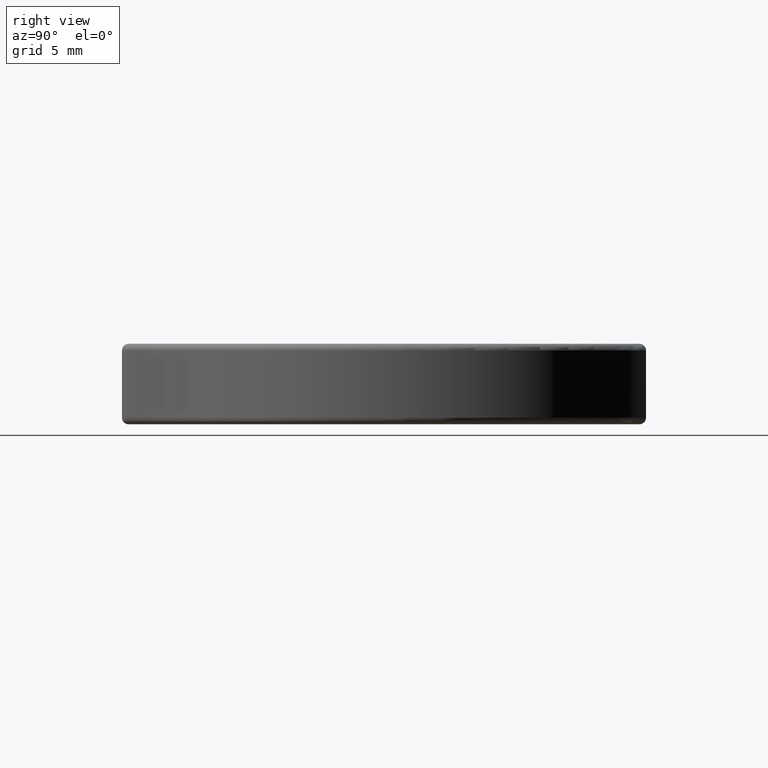
[diagram: clean part render]
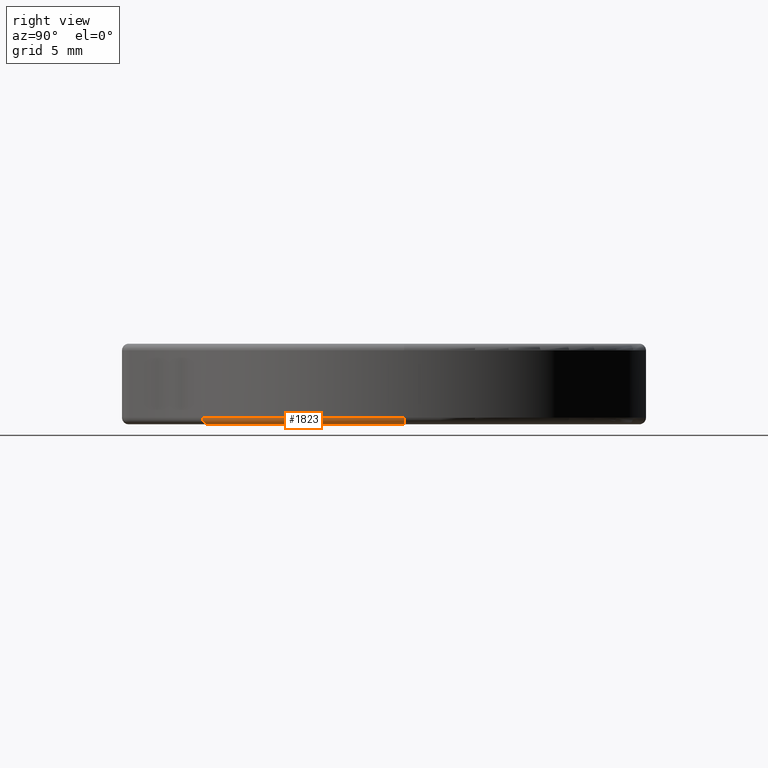
[diagram: same view with one face highlighted and labeled with its STEP entity id]
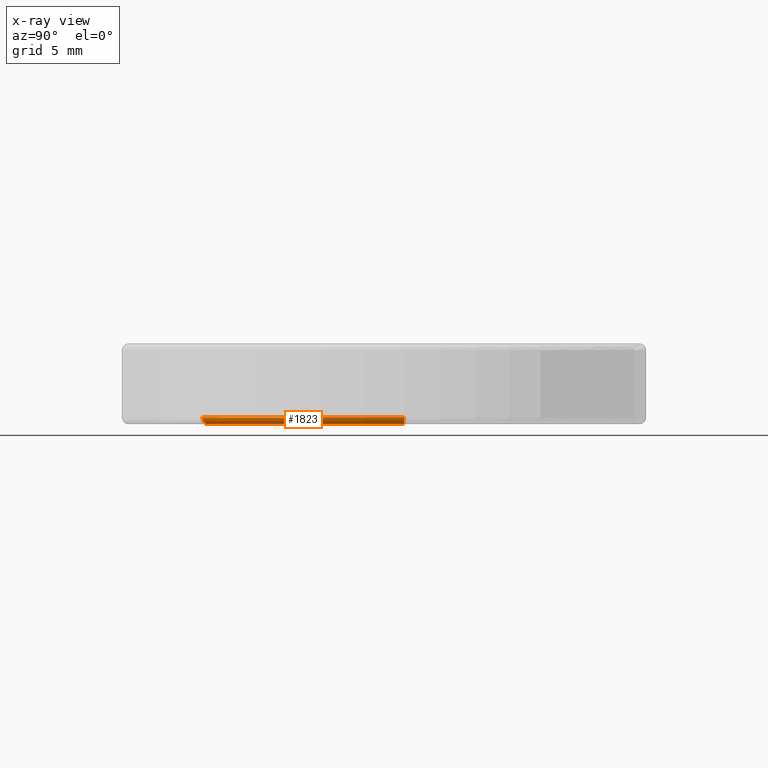
[diagram: x-ray of the same camera — body ghosted, the highlighted face saturated]
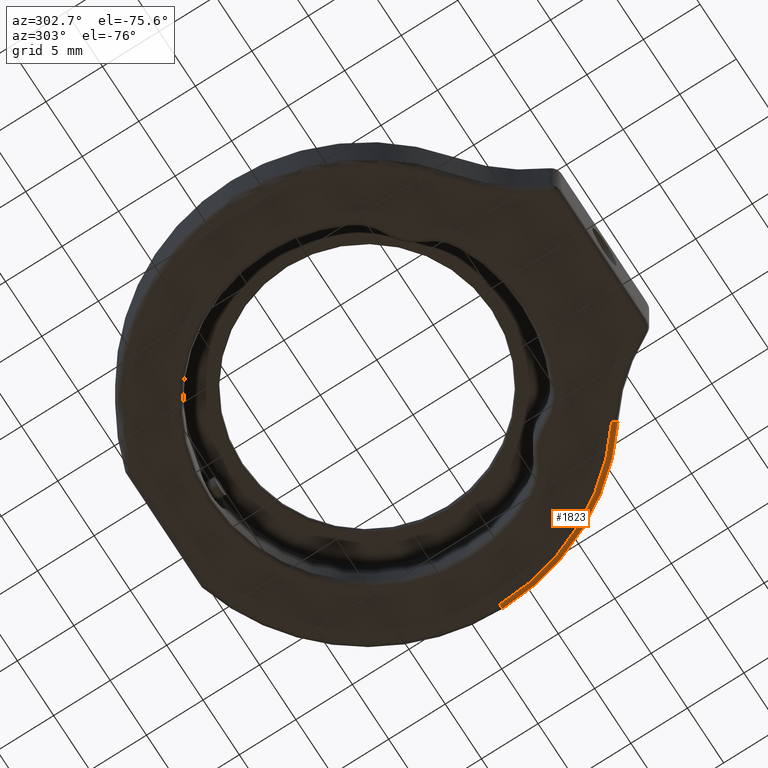
[diagram: same view with one face highlighted and labeled with its STEP entity id]
A machine part, right view. The second image highlights one B-rep face of the part: STEP entity #1823.
The next image is the same camera in x-ray: the body ghosted, the highlighted face saturated — about 0% of this face is hidden behind the body in this view.
A second angle (auxiliary view) of the same face is appended — the face is thin or edge-on in the first view.
In plain terms, the highlighted toroidal blend (fillet) surface has major radius 18.25 mm and minor (blend) radius 0.5 mm.
Its self-contained STEP definition (entity closure, byte-faithful):
#31 = EDGE_CURVE ( 'NONE', #1328, #1467, #945, .T. ) ;
#104 = CARTESIAN_POINT ( 'NONE',  ( 13.61603378189390100, -12.02396483603636300, 38.99999999998591000 ) ) ;
#205 = AXIS2_PLACEMENT_3D ( 'NONE', #1627, #759, #2671 ) ;
#243 = DIRECTION ( 'NONE',  ( -0.0000000000000000000, 0.0000000000000000000, 1.000000000000000000 ) ) ;
#413 = CIRCLE ( 'NONE', #435, 0.5000000000000004400 ) ;
#435 = AXIS2_PLACEMENT_3D ( 'NONE', #1980, #455, #2398 ) ;
#455 = DIRECTION ( 'NONE',  ( 0.0000000000000000000, -1.000000000000000000, 0.0000000000000000000 ) ) ;
#660 = ORIENTED_EDGE ( 'NONE', *, *, #31, .F. ) ;
#677 = EDGE_CURVE ( 'NONE', #1328, #1872, #413, .T. ) ;
#759 = DIRECTION ( 'NONE',  ( -0.0000000000000000000, 0.0000000000000000000, 1.000000000000000000 ) ) ;
#884 = CARTESIAN_POINT ( 'NONE',  ( 13.61603378189390100, -12.02396483603636300, 39.49999999998591000 ) ) ;
#932 = AXIS2_PLACEMENT_3D ( 'NONE', #884, #2383, #1323 ) ;
#945 = CIRCLE ( 'NONE', #974, 18.25000000000000400 ) ;
#952 = EDGE_LOOP ( 'NONE', ( #660, #2379, #2704, #1599 ) ) ;
#974 = AXIS2_PLACEMENT_3D ( 'NONE', #1238, #2728, #2530 ) ;
#1006 = CIRCLE ( 'NONE', #205, 18.75000000000000400 ) ;
#1041 = FACE_OUTER_BOUND ( 'NONE', #952, .T. ) ;
#1112 = AXIS2_PLACEMENT_3D ( 'NONE', #1545, #243, #1756 ) ;
#1238 = CARTESIAN_POINT ( 'NONE',  ( 2.667861014286739200, 2.577405409616099400, 38.99999999998591000 ) ) ;
#1256 = CIRCLE ( 'NONE', #932, 0.5000000000000002200 ) ;
#1323 = DIRECTION ( 'NONE',  ( -0.5998998776771054000, 0.8000750819535590300, 0.0000000000000000000 ) ) ;
#1328 = VERTEX_POINT ( 'NONE', #2025 ) ;
#1454 = TOROIDAL_SURFACE ( 'NONE', #1112, 18.25000000000000400, 0.5000000000000000000 ) ;
#1467 = VERTEX_POINT ( 'NONE', #104 ) ;
#1545 = CARTESIAN_POINT ( 'NONE',  ( 2.667861014286739200, 2.577405409616099400, 39.49999999998591000 ) ) ;
#1599 = ORIENTED_EDGE ( 'NONE', *, *, #2377, .T. ) ;
#1627 = CARTESIAN_POINT ( 'NONE',  ( 2.667861014286739200, 2.577405409616099400, 39.49999999998591000 ) ) ;
#1756 = DIRECTION ( 'NONE',  ( 1.000000000000000000, 0.0000000000000000000, 0.0000000000000000000 ) ) ;
#1823 = ADVANCED_FACE ( 'NONE', ( #1041 ), #1454, .T. ) ;
#1872 = VERTEX_POINT ( 'NONE', #2200 ) ;
#1980 = CARTESIAN_POINT ( 'NONE',  ( 20.91786101428674300, 2.577405409616099400, 39.49999999998591000 ) ) ;
#2025 = CARTESIAN_POINT ( 'NONE',  ( 20.91786101428674300, 2.577405409616099400, 38.99999999998591000 ) ) ;
#2042 = EDGE_CURVE ( 'NONE', #2142, #1872, #1006, .T. ) ;
#2142 = VERTEX_POINT ( 'NONE', #2798 ) ;
#2200 = CARTESIAN_POINT ( 'NONE',  ( 21.41786101428674300, 2.577405409616099400, 39.49999999998591000 ) ) ;
#2377 = EDGE_CURVE ( 'NONE', #2142, #1467, #1256, .T. ) ;
#2379 = ORIENTED_EDGE ( 'NONE', *, *, #677, .T. ) ;
#2383 = DIRECTION ( 'NONE',  ( 0.8000750819535590300, 0.5998998776771054000, 0.0000000000000000000 ) ) ;
#2398 = DIRECTION ( 'NONE',  ( 0.0000000000000000000, 0.0000000000000000000, -1.000000000000000000 ) ) ;
#2530 = DIRECTION ( 'NONE',  ( 1.000000000000000000, 0.0000000000000000000, 0.0000000000000000000 ) ) ;
#2671 = DIRECTION ( 'NONE',  ( 1.000000000000000000, 0.0000000000000000000, 0.0000000000000000000 ) ) ;
#2704 = ORIENTED_EDGE ( 'NONE', *, *, #2042, .F. ) ;
#2728 = DIRECTION ( 'NONE',  ( 0.0000000000000000000, -0.0000000000000000000, -1.000000000000000000 ) ) ;
#2798 = CARTESIAN_POINT ( 'NONE',  ( 13.91598372073245200, -12.42400237701314200, 39.49999999998591000 ) ) ;